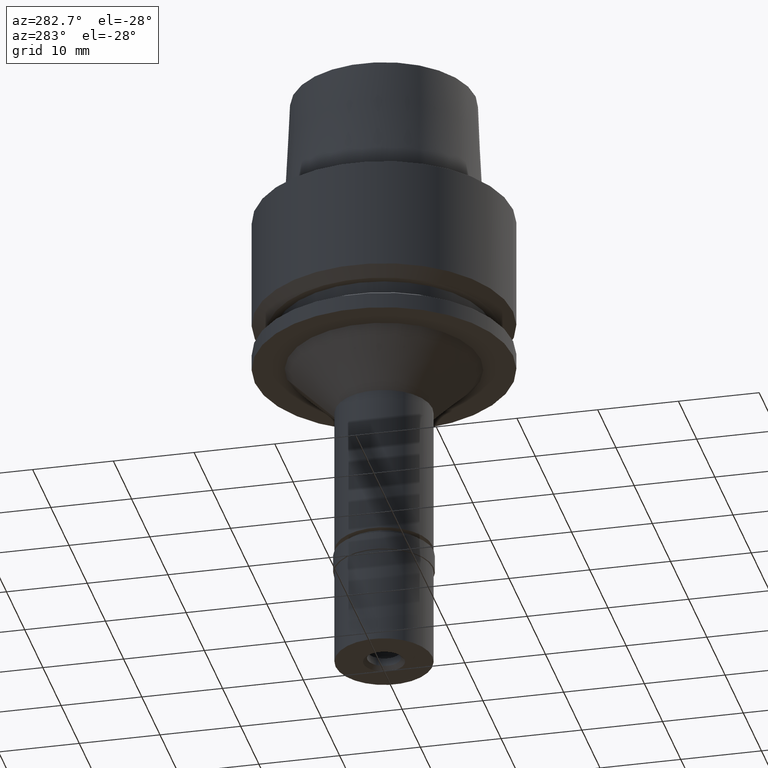
[diagram: clean part render]
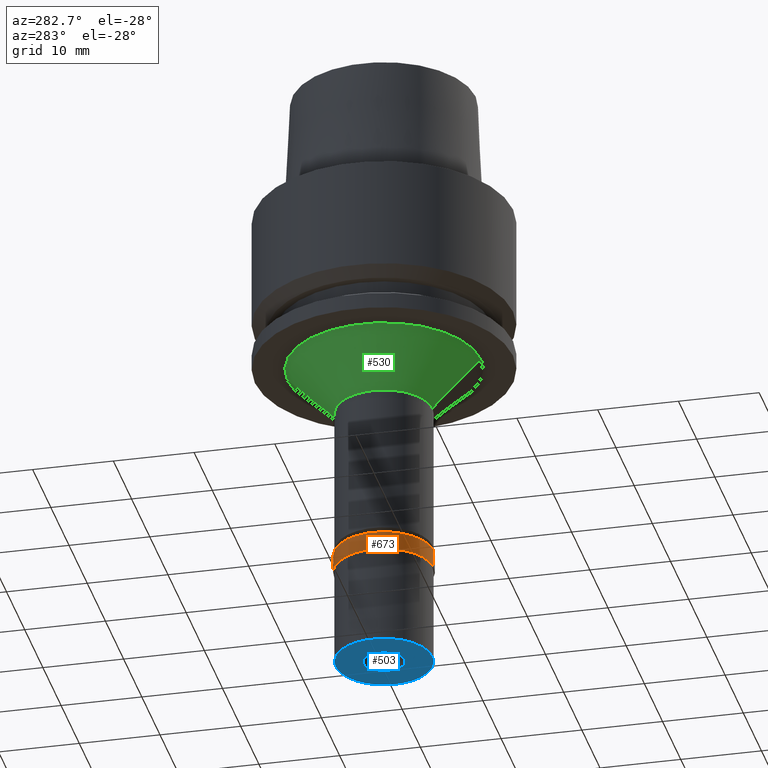
[diagram: same view with three faces highlighted in distinct colors, each labeled with its STEP entity id]
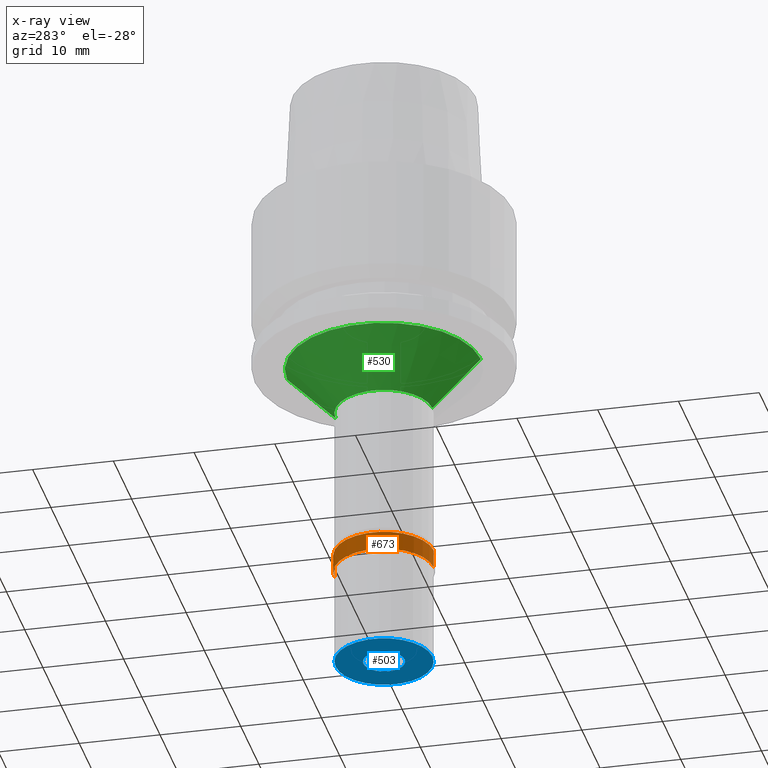
[diagram: x-ray of the same camera — body ghosted, the three highlighted faces saturated]
A machine part, auxiliary view with three faces highlighted in distinct colors.
The next image is the same camera in x-ray (body ghosted, the three faces saturated) — at least one of them is partly hidden behind the body in this view.
Their STEP definitions:

[orange] entity #673 — the highlighted cylindrical surface (partial cylindrical patch) has radius 6.15 mm, axis along (0, 0, 1).
#7 = DIRECTION ( 'NONE',  ( 0.0000000000000000000, 1.000000000000000000, 0.0000000000000000000 ) ) ;
#14 = AXIS2_PLACEMENT_3D ( 'NONE', #1273, #1887, #7 ) ;
#260 = EDGE_CURVE ( 'NONE', #1550, #1184, #905, .T. ) ;
#415 = CARTESIAN_POINT ( 'NONE',  ( 0.0000000000000000000, -6.150000000000000355, 1.953992523340000041E-14 ) ) ;
#452 = VECTOR ( 'NONE', #2512, 1000.000000000000000 ) ;
#662 = VERTEX_POINT ( 'NONE', #991 ) ;
#673 = ADVANCED_FACE ( 'NONE', ( #1635 ), #2258, .T. ) ;
#689 = ORIENTED_EDGE ( 'NONE', *, *, #971, .T. ) ;
#834 = ORIENTED_EDGE ( 'NONE', *, *, #260, .T. ) ;
#845 = CIRCLE ( 'NONE', #14, 6.150000000000000355 ) ;
#905 = CIRCLE ( 'NONE', #1607, 6.150000000000000355 ) ;
#971 = EDGE_CURVE ( 'NONE', #1184, #662, #1347, .T. ) ;
#991 = CARTESIAN_POINT ( 'NONE',  ( 0.0000000000000000000, 6.150000000000000355, -2.299999999999999822 ) ) ;
#1004 = ORIENTED_EDGE ( 'NONE', *, *, #2240, .F. ) ;
#1014 = DIRECTION ( 'NONE',  ( 0.0000000000000000000, 1.000000000000000000, 0.0000000000000000000 ) ) ;
#1163 = VECTOR ( 'NONE', #2194, 1000.000000000000000 ) ;
#1184 = VERTEX_POINT ( 'NONE', #1343 ) ;
#1273 = CARTESIAN_POINT ( 'NONE',  ( 0.0000000000000000000, 0.0000000000000000000, -2.299999999999999822 ) ) ;
#1296 = CARTESIAN_POINT ( 'NONE',  ( 0.0000000000000000000, -6.150000000000000355, 0.0000000000000000000 ) ) ;
#1343 = CARTESIAN_POINT ( 'NONE',  ( 0.0000000000000000000, 6.150000000000000355, 1.953992523340000041E-14 ) ) ;
#1346 = AXIS2_PLACEMENT_3D ( 'NONE', #1425, #2445, #1014 ) ;
#1347 = LINE ( 'NONE', #1359, #1163 ) ;
#1359 = CARTESIAN_POINT ( 'NONE',  ( 0.0000000000000000000, 6.150000000000000355, 0.0000000000000000000 ) ) ;
#1425 = CARTESIAN_POINT ( 'NONE',  ( 0.0000000000000000000, 0.0000000000000000000, -15.22500000000000142 ) ) ;
#1497 = LINE ( 'NONE', #1296, #452 ) ;
#1529 = DIRECTION ( 'NONE',  ( 0.0000000000000000000, 0.0000000000000000000, -1.000000000000000000 ) ) ;
#1550 = VERTEX_POINT ( 'NONE', #415 ) ;
#1607 = AXIS2_PLACEMENT_3D ( 'NONE', #2575, #1529, #2349 ) ;
#1635 = FACE_OUTER_BOUND ( 'NONE', #1868, .T. ) ;
#1868 = EDGE_LOOP ( 'NONE', ( #2403, #1004, #834, #689 ) ) ;
#1887 = DIRECTION ( 'NONE',  ( 0.0000000000000000000, 0.0000000000000000000, 1.000000000000000000 ) ) ;
#1891 = EDGE_CURVE ( 'NONE', #662, #2581, #845, .T. ) ;
#2194 = DIRECTION ( 'NONE',  ( 0.0000000000000000000, 0.0000000000000000000, -1.000000000000000000 ) ) ;
#2240 = EDGE_CURVE ( 'NONE', #1550, #2581, #1497, .T. ) ;
#2258 = CYLINDRICAL_SURFACE ( 'NONE', #1346, 6.150000000000000355 ) ;
#2349 = DIRECTION ( 'NONE',  ( 0.0000000000000000000, -1.000000000000000000, 0.0000000000000000000 ) ) ;
#2356 = CARTESIAN_POINT ( 'NONE',  ( 0.0000000000000000000, -6.150000000000000355, -2.299999999999999822 ) ) ;
#2403 = ORIENTED_EDGE ( 'NONE', *, *, #1891, .T. ) ;
#2445 = DIRECTION ( 'NONE',  ( 0.0000000000000000000, 0.0000000000000000000, 1.000000000000000000 ) ) ;
#2512 = DIRECTION ( 'NONE',  ( 0.0000000000000000000, 0.0000000000000000000, -1.000000000000000000 ) ) ;
#2575 = CARTESIAN_POINT ( 'NONE',  ( 0.0000000000000000000, 0.0000000000000000000, 1.953992523340000041E-14 ) ) ;
#2581 = VERTEX_POINT ( 'NONE', #2356 ) ;

[blue] entity #503 — the highlighted planar face has unit normal (0, 0, 1).
#95 = CARTESIAN_POINT ( 'NONE',  ( 0.0000000000000000000, 0.0000000000000000000, -14.50000000000000000 ) ) ;
#112 = ORIENTED_EDGE ( 'NONE', *, *, #2443, .F. ) ;
#205 = DIRECTION ( 'NONE',  ( 0.0000000000000000000, 0.0000000000000000000, -1.000000000000000000 ) ) ;
#324 = EDGE_CURVE ( 'NONE', #2602, #2515, #2087, .T. ) ;
#329 = DIRECTION ( 'NONE',  ( 0.0000000000000000000, 1.000000000000000000, 0.0000000000000000000 ) ) ;
#382 = FACE_BOUND ( 'NONE', #819, .T. ) ;
#455 = AXIS2_PLACEMENT_3D ( 'NONE', #736, #1353, #1117 ) ;
#503 = ADVANCED_FACE ( 'NONE', ( #1844, #382 ), #1872, .F. ) ;
#736 = CARTESIAN_POINT ( 'NONE',  ( 0.0000000000000000000, 0.0000000000000000000, -14.50000000000000000 ) ) ;
#807 = ORIENTED_EDGE ( 'NONE', *, *, #1437, .F. ) ;
#810 = CARTESIAN_POINT ( 'NONE',  ( 0.0000000000000000000, 6.000000000000000000, -14.50000000000000000 ) ) ;
#819 = EDGE_LOOP ( 'NONE', ( #1360, #807 ) ) ;
#825 = CARTESIAN_POINT ( 'NONE',  ( 0.0000000000000000000, 2.550000000000000266, -14.50000000000000000 ) ) ;
#843 = CARTESIAN_POINT ( 'NONE',  ( 0.0000000000000000000, 0.0000000000000000000, -14.50000000000000000 ) ) ;
#851 = AXIS2_PLACEMENT_3D ( 'NONE', #95, #2190, #2367 ) ;
#1117 = DIRECTION ( 'NONE',  ( 0.0000000000000000000, -1.000000000000000000, 0.0000000000000000000 ) ) ;
#1147 = CIRCLE ( 'NONE', #1549, 2.550000000000000266 ) ;
#1214 = CARTESIAN_POINT ( 'NONE',  ( 0.0000000000000000000, 0.0000000000000000000, -14.50000000000000000 ) ) ;
#1269 = EDGE_LOOP ( 'NONE', ( #2468, #112 ) ) ;
#1345 = VERTEX_POINT ( 'NONE', #2451 ) ;
#1353 = DIRECTION ( 'NONE',  ( 0.0000000000000000000, 0.0000000000000000000, 1.000000000000000000 ) ) ;
#1360 = ORIENTED_EDGE ( 'NONE', *, *, #324, .F. ) ;
#1416 = CIRCLE ( 'NONE', #851, 6.000000000000000000 ) ;
#1429 = AXIS2_PLACEMENT_3D ( 'NONE', #1214, #1668, #2098 ) ;
#1436 = CARTESIAN_POINT ( 'NONE',  ( 0.0000000000000000000, -2.550000000000000266, -14.50000000000000000 ) ) ;
#1437 = EDGE_CURVE ( 'NONE', #2515, #2602, #1147, .T. ) ;
#1468 = DIRECTION ( 'NONE',  ( 0.0000000000000000000, -1.000000000000000000, 0.0000000000000000000 ) ) ;
#1549 = AXIS2_PLACEMENT_3D ( 'NONE', #843, #205, #1468 ) ;
#1668 = DIRECTION ( 'NONE',  ( 0.0000000000000000000, 0.0000000000000000000, 1.000000000000000000 ) ) ;
#1844 = FACE_OUTER_BOUND ( 'NONE', #1269, .T. ) ;
#1872 = PLANE ( 'NONE',  #1429 ) ;
#2087 = CIRCLE ( 'NONE', #2380, 2.550000000000000266 ) ;
#2098 = DIRECTION ( 'NONE',  ( 1.000000000000000000, 0.0000000000000000000, 0.0000000000000000000 ) ) ;
#2190 = DIRECTION ( 'NONE',  ( 0.0000000000000000000, 0.0000000000000000000, 1.000000000000000000 ) ) ;
#2220 = DIRECTION ( 'NONE',  ( 0.0000000000000000000, 0.0000000000000000000, -1.000000000000000000 ) ) ;
#2367 = DIRECTION ( 'NONE',  ( 0.0000000000000000000, 1.000000000000000000, 0.0000000000000000000 ) ) ;
#2374 = EDGE_CURVE ( 'NONE', #2656, #1345, #1416, .T. ) ;
#2380 = AXIS2_PLACEMENT_3D ( 'NONE', #2420, #2220, #329 ) ;
#2416 = CIRCLE ( 'NONE', #455, 6.000000000000000000 ) ;
#2420 = CARTESIAN_POINT ( 'NONE',  ( 0.0000000000000000000, 0.0000000000000000000, -14.50000000000000000 ) ) ;
#2443 = EDGE_CURVE ( 'NONE', #1345, #2656, #2416, .T. ) ;
#2451 = CARTESIAN_POINT ( 'NONE',  ( 0.0000000000000000000, -6.000000000000000000, -14.50000000000000000 ) ) ;
#2468 = ORIENTED_EDGE ( 'NONE', *, *, #2374, .F. ) ;
#2515 = VERTEX_POINT ( 'NONE', #1436 ) ;
#2602 = VERTEX_POINT ( 'NONE', #825 ) ;
#2656 = VERTEX_POINT ( 'NONE', #810 ) ;

[green] entity #530 — the highlighted conical surface has half-angle 45 deg.
#107 = DIRECTION ( 'NONE',  ( 0.0000000000000000000, -1.000000000000000000, 0.0000000000000000000 ) ) ;
#447 = DIRECTION ( 'NONE',  ( 0.0000000000000000000, 0.7071067811865474617, -0.7071067811865474617 ) ) ;
#530 = ADVANCED_FACE ( 'NONE', ( #2503 ), #555, .T. ) ;
#555 = CONICAL_SURFACE ( 'NONE', #2091, 9.000000000000000000, 0.7853981633972997312 ) ;
#598 = CIRCLE ( 'NONE', #820, 6.000000000000000000 ) ;
#602 = DIRECTION ( 'NONE',  ( 0.0000000000000000000, 1.000000000000000000, 0.0000000000000000000 ) ) ;
#632 = DIRECTION ( 'NONE',  ( 0.0000000000000000000, 0.0000000000000000000, 1.000000000000000000 ) ) ;
#746 = EDGE_CURVE ( 'NONE', #2687, #1810, #2428, .T. ) ;
#820 = AXIS2_PLACEMENT_3D ( 'NONE', #1142, #1991, #107 ) ;
#847 = CARTESIAN_POINT ( 'NONE',  ( 0.0000000000000000000, -12.00000000000000000, -20.00000000000000000 ) ) ;
#920 = ORIENTED_EDGE ( 'NONE', *, *, #746, .T. ) ;
#1142 = CARTESIAN_POINT ( 'NONE',  ( 0.0000000000000000000, 0.0000000000000000000, -26.00000000000000000 ) ) ;
#1234 = VECTOR ( 'NONE', #447, 1000.000000000000114 ) ;
#1285 = CARTESIAN_POINT ( 'NONE',  ( 0.0000000000000000000, 0.0000000000000000000, -20.00000000000000000 ) ) ;
#1289 = CARTESIAN_POINT ( 'NONE',  ( 0.0000000000000000000, 12.00000000000000000, -20.00000000000000000 ) ) ;
#1297 = AXIS2_PLACEMENT_3D ( 'NONE', #1285, #1313, #2520 ) ;
#1313 = DIRECTION ( 'NONE',  ( 0.0000000000000000000, 0.0000000000000000000, -1.000000000000000000 ) ) ;
#1332 = EDGE_CURVE ( 'NONE', #2365, #1972, #598, .T. ) ;
#1441 = ORIENTED_EDGE ( 'NONE', *, *, #2139, .F. ) ;
#1510 = VECTOR ( 'NONE', #1521, 1000.000000000000114 ) ;
#1521 = DIRECTION ( 'NONE',  ( 0.0000000000000000000, -0.7071067811865474617, -0.7071067811865474617 ) ) ;
#1540 = ORIENTED_EDGE ( 'NONE', *, *, #1332, .F. ) ;
#1568 = ORIENTED_EDGE ( 'NONE', *, *, #2276, .T. ) ;
#1810 = VERTEX_POINT ( 'NONE', #1289 ) ;
#1853 = CARTESIAN_POINT ( 'NONE',  ( 0.0000000000000000000, 6.000000000000000000, -26.00000000000000000 ) ) ;
#1923 = LINE ( 'NONE', #2120, #1510 ) ;
#1934 = LINE ( 'NONE', #847, #1234 ) ;
#1972 = VERTEX_POINT ( 'NONE', #1853 ) ;
#1991 = DIRECTION ( 'NONE',  ( 0.0000000000000000000, 0.0000000000000000000, -1.000000000000000000 ) ) ;
#2074 = CARTESIAN_POINT ( 'NONE',  ( 0.0000000000000000000, -12.00000000000000000, -20.00000000000000000 ) ) ;
#2091 = AXIS2_PLACEMENT_3D ( 'NONE', #2241, #632, #602 ) ;
#2120 = CARTESIAN_POINT ( 'NONE',  ( 0.0000000000000000000, 12.00000000000000000, -20.00000000000000000 ) ) ;
#2139 = EDGE_CURVE ( 'NONE', #2687, #2365, #1934, .T. ) ;
#2198 = CARTESIAN_POINT ( 'NONE',  ( 0.0000000000000000000, -6.000000000000000000, -26.00000000000000000 ) ) ;
#2236 = EDGE_LOOP ( 'NONE', ( #1540, #1441, #920, #1568 ) ) ;
#2241 = CARTESIAN_POINT ( 'NONE',  ( 0.0000000000000000000, 0.0000000000000000000, -23.00000000000000000 ) ) ;
#2276 = EDGE_CURVE ( 'NONE', #1810, #1972, #1923, .T. ) ;
#2365 = VERTEX_POINT ( 'NONE', #2198 ) ;
#2428 = CIRCLE ( 'NONE', #1297, 12.00000000000000000 ) ;
#2503 = FACE_OUTER_BOUND ( 'NONE', #2236, .T. ) ;
#2520 = DIRECTION ( 'NONE',  ( 0.0000000000000000000, -1.000000000000000000, 0.0000000000000000000 ) ) ;
#2687 = VERTEX_POINT ( 'NONE', #2074 ) ;